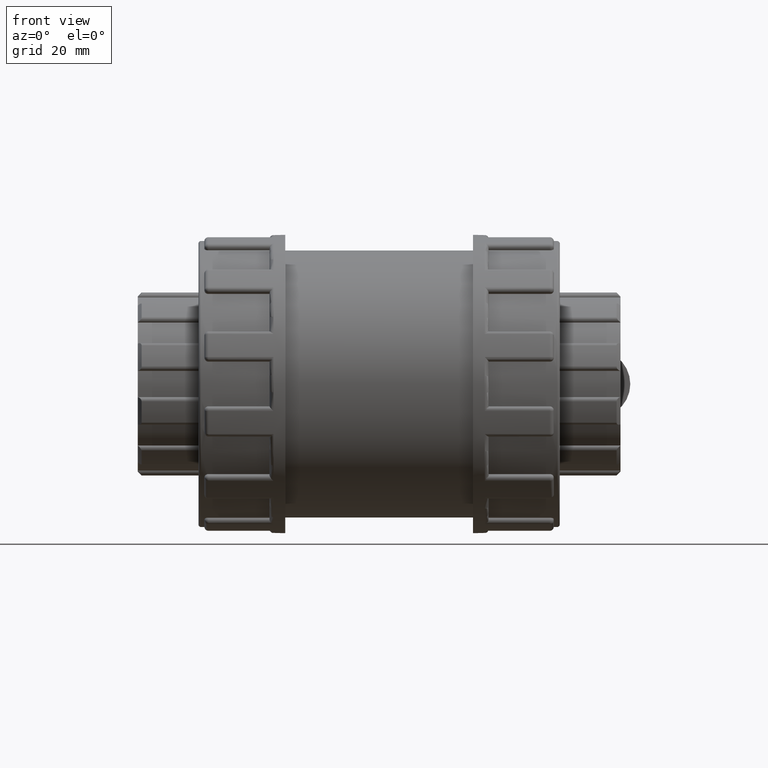
[diagram: clean part render]
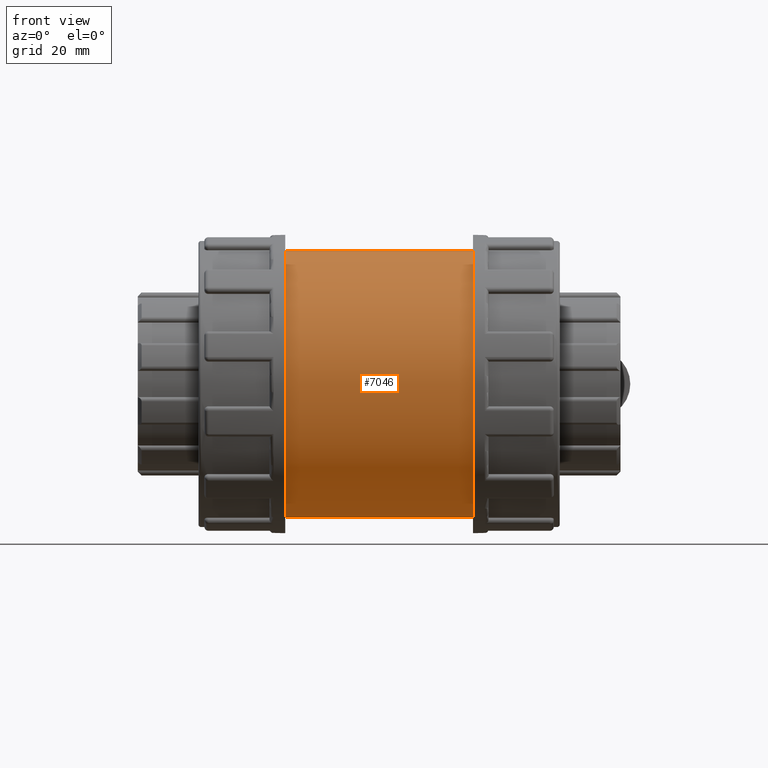
[diagram: same view with one face highlighted and labeled with its STEP entity id]
A machine part, front view. The second image highlights one B-rep face of the part: STEP entity #7046.
In plain terms, the highlighted cylindrical surface (bore or boss wall) has radius 24.75 mm, axis along (1, 0, 0).
Its self-contained STEP definition (entity closure, byte-faithful):
#103=B_SPLINE_CURVE_WITH_KNOTS('',3,(#11388,#11389,#11390,#11391,#11392,
#11393,#11394,#11395,#11396,#11397,#11398,#11399,#11400,#11401,#11402,#11403,
#11404,#11405,#11406,#11407,#11408,#11409,#11410,#11411,#11412,#11413,#11414,
#11415,#11416,#11417,#11418,#11419,#11420,#11421),.UNSPECIFIED.,.T.,.F.,
(4,2,2,2,2,2,2,2,2,2,2,2,2,2,2,2,4),(0.,0.313448999509541,0.626897999019083,
0.940201620640778,1.25350524226247,1.56680886388417,1.88011248550586,2.1935614850154,
2.50701048452494,2.82045948403449,3.13390848354403,3.44721210516572,3.76051572678742,
4.07381934840911,4.38712297003081,4.70057196954035,5.01402096904989),
 .UNSPECIFIED.);
#220=FACE_BOUND('',#1304,.T.);
#221=FACE_BOUND('',#1305,.T.);
#849=FACE_OUTER_BOUND('',#1303,.T.);
#1303=EDGE_LOOP('',(#6414));
#1304=EDGE_LOOP('',(#6415));
#1305=EDGE_LOOP('',(#6416));
#2621=CIRCLE('',#7997,24.75);
#2622=CIRCLE('',#7999,24.75);
#2820=VERTEX_POINT('',#11387);
#3265=VERTEX_POINT('',#14005);
#3266=VERTEX_POINT('',#14008);
#3584=EDGE_CURVE('',#2820,#2820,#103,.T.);
#4317=EDGE_CURVE('',#3265,#3265,#2621,.T.);
#4318=EDGE_CURVE('',#3266,#3266,#2622,.T.);
#6414=ORIENTED_EDGE('',*,*,#4317,.T.);
#6415=ORIENTED_EDGE('',*,*,#3584,.T.);
#6416=ORIENTED_EDGE('',*,*,#4318,.F.);
#6615=CYLINDRICAL_SURFACE('',#7998,24.75);
#7046=ADVANCED_FACE('',(#849,#220,#221),#6615,.T.);
#7997=AXIS2_PLACEMENT_3D('',#14006,#10292,#10293);
#7998=AXIS2_PLACEMENT_3D('',#14007,#10294,#10295);
#7999=AXIS2_PLACEMENT_3D('',#14009,#10296,#10297);
#10292=DIRECTION('center_axis',(1.,0.,0.));
#10293=DIRECTION('ref_axis',(0.,0.,-1.));
#10294=DIRECTION('center_axis',(1.,0.,0.));
#10295=DIRECTION('ref_axis',(0.,1.,0.));
#10296=DIRECTION('center_axis',(1.,0.,0.));
#10297=DIRECTION('ref_axis',(0.,0.,-1.));
#11387=CARTESIAN_POINT('',(2.77555756156289E-16,23.3345237791561,-8.25));
#11388=CARTESIAN_POINT('Ctrl Pts',(0.,23.3345237791561,-8.25));
#11389=CARTESIAN_POINT('Ctrl Pts',(1.04482999836514,23.3345237791561,-8.25));
#11390=CARTESIAN_POINT('Ctrl Pts',(2.15326628107406,23.4120709586878,-8.0395452989677));
#11391=CARTESIAN_POINT('Ctrl Pts',(4.18318873465101,23.6851759052892,-7.1952614879174));
#11392=CARTESIAN_POINT('Ctrl Pts',(5.10545542958048,23.8760680625196,-6.56180645999756));
#11393=CARTESIAN_POINT('Ctrl Pts',(6.5614687316317,24.2292031587938,-5.10579315794633));
#11394=CARTESIAN_POINT('Ctrl Pts',(7.19518376046184,24.4153548812531,-4.18339194864859));
#11395=CARTESIAN_POINT('Ctrl Pts',(8.03966147162514,24.6774196303351,-2.15297063207207));
#11396=CARTESIAN_POINT('Ctrl Pts',(8.25,24.75,-1.04434540540565));
#11397=CARTESIAN_POINT('Ctrl Pts',(8.25,24.75,1.04434540540565));
#11398=CARTESIAN_POINT('Ctrl Pts',(8.03966147162514,24.6774196303351,2.15297063207207));
#11399=CARTESIAN_POINT('Ctrl Pts',(7.19518376046184,24.4153548812531,4.18339194864859));
#11400=CARTESIAN_POINT('Ctrl Pts',(6.5614687316317,24.2292031587938,5.10579315794633));
#11401=CARTESIAN_POINT('Ctrl Pts',(5.10545542958048,23.8760680625196,6.56180645999756));
#11402=CARTESIAN_POINT('Ctrl Pts',(4.18318873465101,23.6851759052892,7.1952614879174));
#11403=CARTESIAN_POINT('Ctrl Pts',(2.15326628107406,23.4120709586878,8.0395452989677));
#11404=CARTESIAN_POINT('Ctrl Pts',(1.04482999836514,23.3345237791561,8.25));
#11405=CARTESIAN_POINT('Ctrl Pts',(-1.04482999836514,23.3345237791561,8.25));
#11406=CARTESIAN_POINT('Ctrl Pts',(-2.15326628107406,23.4120709586878,8.0395452989677));
#11407=CARTESIAN_POINT('Ctrl Pts',(-4.18318873465101,23.6851759052892,7.1952614879174));
#11408=CARTESIAN_POINT('Ctrl Pts',(-5.10545542958048,23.8760680625196,6.56180645999756));
#11409=CARTESIAN_POINT('Ctrl Pts',(-6.5614687316317,24.2292031587938,5.10579315794633));
#11410=CARTESIAN_POINT('Ctrl Pts',(-7.19518376046184,24.4153548812531,4.18339194864859));
#11411=CARTESIAN_POINT('Ctrl Pts',(-8.03966147162514,24.6774196303351,2.15297063207207));
#11412=CARTESIAN_POINT('Ctrl Pts',(-8.25,24.75,1.04434540540565));
#11413=CARTESIAN_POINT('Ctrl Pts',(-8.25,24.75,-1.04434540540565));
#11414=CARTESIAN_POINT('Ctrl Pts',(-8.03966147162514,24.6774196303351,-2.15297063207207));
#11415=CARTESIAN_POINT('Ctrl Pts',(-7.19518376046184,24.4153548812531,-4.18339194864859));
#11416=CARTESIAN_POINT('Ctrl Pts',(-6.56146873163171,24.2292031587938,-5.10579315794633));
#11417=CARTESIAN_POINT('Ctrl Pts',(-5.10545542958048,23.8760680625196,-6.56180645999756));
#11418=CARTESIAN_POINT('Ctrl Pts',(-4.18318873465101,23.6851759052892,-7.1952614879174));
#11419=CARTESIAN_POINT('Ctrl Pts',(-2.15326628107406,23.4120709586878,-8.0395452989677));
#11420=CARTESIAN_POINT('Ctrl Pts',(-1.04482999836514,23.3345237791561,-8.25));
#11421=CARTESIAN_POINT('Ctrl Pts',(0.,23.3345237791561,-8.25));
#14005=CARTESIAN_POINT('',(-17.3,24.75,0.));
#14006=CARTESIAN_POINT('Origin',(-17.3,0.,0.));
#14007=CARTESIAN_POINT('Origin',(0.,0.,0.));
#14008=CARTESIAN_POINT('',(17.3,24.75,0.));
#14009=CARTESIAN_POINT('Origin',(17.3,0.,0.));